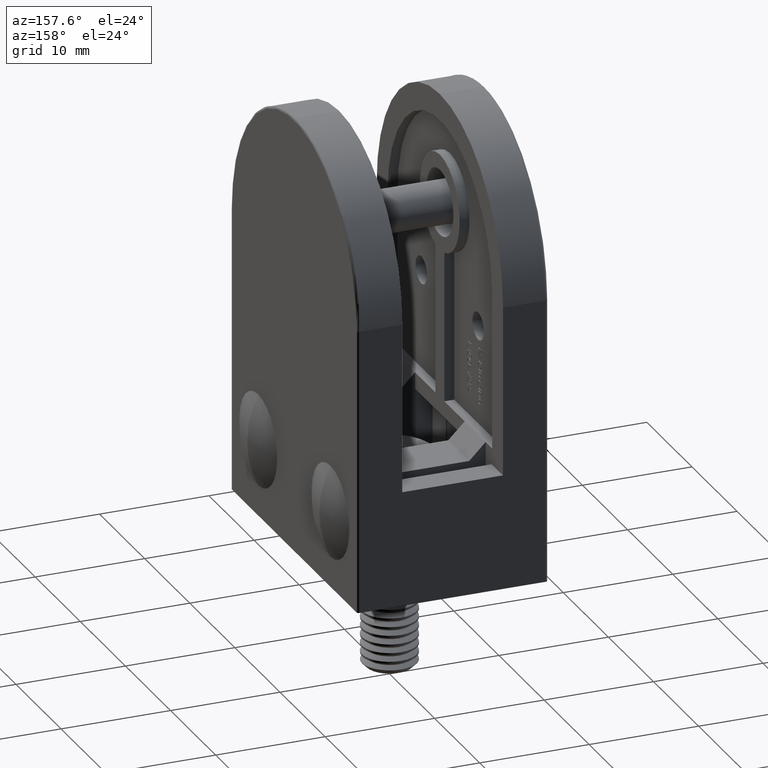
[diagram: clean part render]
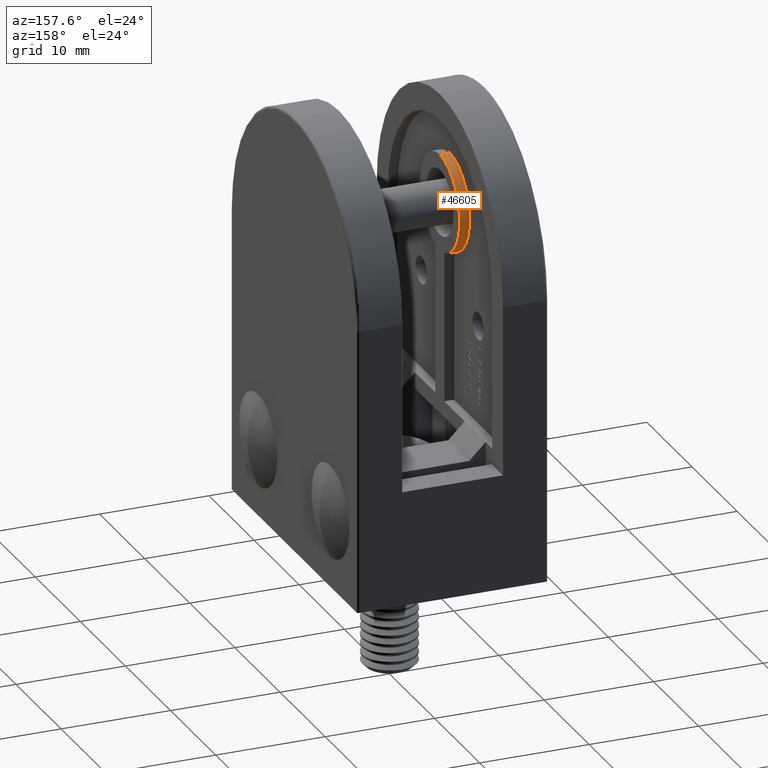
[diagram: same view with one face highlighted and labeled with its STEP entity id]
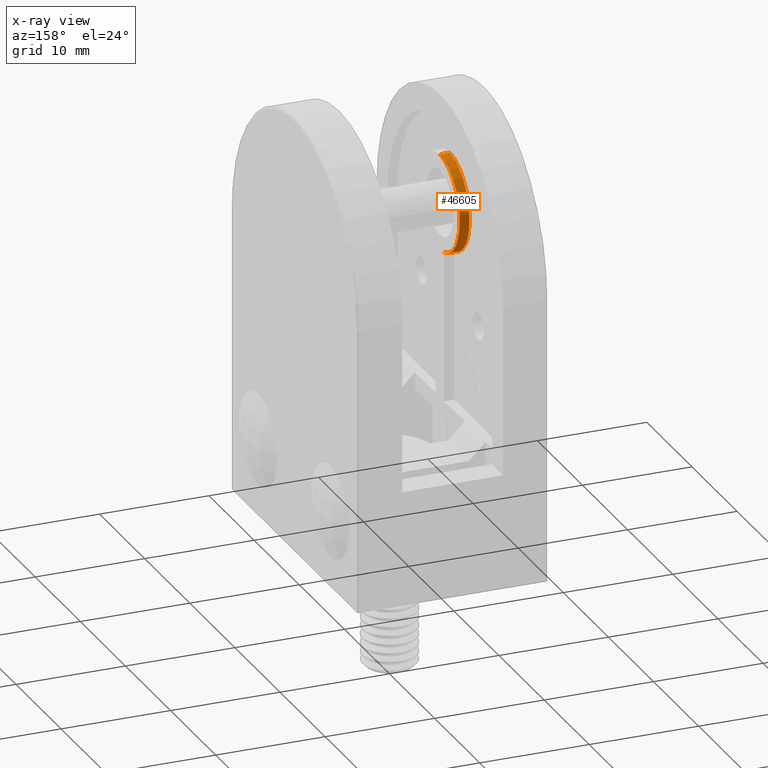
[diagram: x-ray of the same camera — body ghosted, the highlighted face saturated]
A machine part, auxiliary view. The second image highlights one B-rep face of the part: STEP entity #46605.
The next image is the same camera in x-ray: the body ghosted, the highlighted face saturated — about 0% of this face is hidden behind the body in this view.
In plain terms, the highlighted cylindrical surface (partial cylindrical patch) has radius 4.4 mm, axis along (-1, -0, -0).
Its self-contained STEP definition (entity closure, byte-faithful):
#228 = DIRECTION ( 'NONE',  ( 1.000000000000000000, 0.0000000000000000000, 0.0000000000000000000 ) ) ;
#529 = ORIENTED_EDGE ( 'NONE', *, *, #52257, .F. ) ;
#5716 = VECTOR ( 'NONE', #19220, 1000.000000000000000 ) ;
#7776 = DIRECTION ( 'NONE',  ( 0.0000000000000000000, 0.0000000000000000000, 1.000000000000000000 ) ) ;
#8176 = CARTESIAN_POINT ( 'NONE',  ( 3.199999999999999700, 0.0000000000000000000, 29.99999999999999600 ) ) ;
#9294 = VERTEX_POINT ( 'NONE', #39465 ) ;
#10866 = CARTESIAN_POINT ( 'NONE',  ( 4.099999999999999600, 0.0000000000000000000, 29.99999999999999600 ) ) ;
#16066 = DIRECTION ( 'NONE',  ( 0.0000000000000000000, 0.0000000000000000000, -1.000000000000000000 ) ) ;
#18194 = VERTEX_POINT ( 'NONE', #37068 ) ;
#18552 = FACE_OUTER_BOUND ( 'NONE', #28571, .T. ) ;
#19220 = DIRECTION ( 'NONE',  ( -1.000000000000000000, -0.0000000000000000000, -0.0000000000000000000 ) ) ;
#19719 = DIRECTION ( 'NONE',  ( -1.000000000000000000, -0.0000000000000000000, -0.0000000000000000000 ) ) ;
#20358 = ORIENTED_EDGE ( 'NONE', *, *, #36107, .F. ) ;
#21621 = VERTEX_POINT ( 'NONE', #29213 ) ;
#22811 = AXIS2_PLACEMENT_3D ( 'NONE', #8176, #228, #16066 ) ;
#23256 = CARTESIAN_POINT ( 'NONE',  ( 28.16657433038610800, 0.0000000000000000000, 34.39999999999999100 ) ) ;
#27159 = CARTESIAN_POINT ( 'NONE',  ( 28.16657433038610800, 1.000000000000001800, 25.71514294287428400 ) ) ;
#27327 = VERTEX_POINT ( 'NONE', #31621 ) ;
#28571 = EDGE_LOOP ( 'NONE', ( #529, #20358, #39739, #41054 ) ) ;
#29213 = CARTESIAN_POINT ( 'NONE',  ( 4.099999999999999600, 0.0000000000000000000, 34.39999999999999100 ) ) ;
#30656 = AXIS2_PLACEMENT_3D ( 'NONE', #35263, #19719, #7776 ) ;
#31390 = DIRECTION ( 'NONE',  ( -1.000000000000000000, -0.0000000000000000000, -0.0000000000000000000 ) ) ;
#31621 = CARTESIAN_POINT ( 'NONE',  ( 3.199999999999999700, 0.0000000000000000000, 34.39999999999999100 ) ) ;
#31927 = CIRCLE ( 'NONE', #39929, 4.400000000000001200 ) ;
#33686 = EDGE_CURVE ( 'NONE', #18194, #9294, #37507, .T. ) ;
#35263 = CARTESIAN_POINT ( 'NONE',  ( 28.16657433038610800, 0.0000000000000000000, 29.99999999999999600 ) ) ;
#36107 = EDGE_CURVE ( 'NONE', #18194, #21621, #31927, .T. ) ;
#37068 = CARTESIAN_POINT ( 'NONE',  ( 4.099999999999999600, 1.000000000000001800, 25.71514294287428400 ) ) ;
#37507 = LINE ( 'NONE', #27159, #51286 ) ;
#39423 = CYLINDRICAL_SURFACE ( 'NONE', #30656, 4.399999999999997700 ) ;
#39465 = CARTESIAN_POINT ( 'NONE',  ( 3.199999999999999700, 1.000000000000001800, 25.71514294287428400 ) ) ;
#39739 = ORIENTED_EDGE ( 'NONE', *, *, #33686, .T. ) ;
#39929 = AXIS2_PLACEMENT_3D ( 'NONE', #10866, #47391, #50741 ) ;
#41054 = ORIENTED_EDGE ( 'NONE', *, *, #45254, .T. ) ;
#45254 = EDGE_CURVE ( 'NONE', #9294, #27327, #50202, .T. ) ;
#46605 = ADVANCED_FACE ( 'NONE', ( #18552 ), #39423, .T. ) ;
#47391 = DIRECTION ( 'NONE',  ( 1.000000000000000000, 0.0000000000000000000, 0.0000000000000000000 ) ) ;
#49868 = LINE ( 'NONE', #23256, #5716 ) ;
#50202 = CIRCLE ( 'NONE', #22811, 4.400000000000001200 ) ;
#50741 = DIRECTION ( 'NONE',  ( 0.0000000000000000000, 0.0000000000000000000, -1.000000000000000000 ) ) ;
#51286 = VECTOR ( 'NONE', #31390, 1000.000000000000000 ) ;
#52257 = EDGE_CURVE ( 'NONE', #21621, #27327, #49868, .T. ) ;